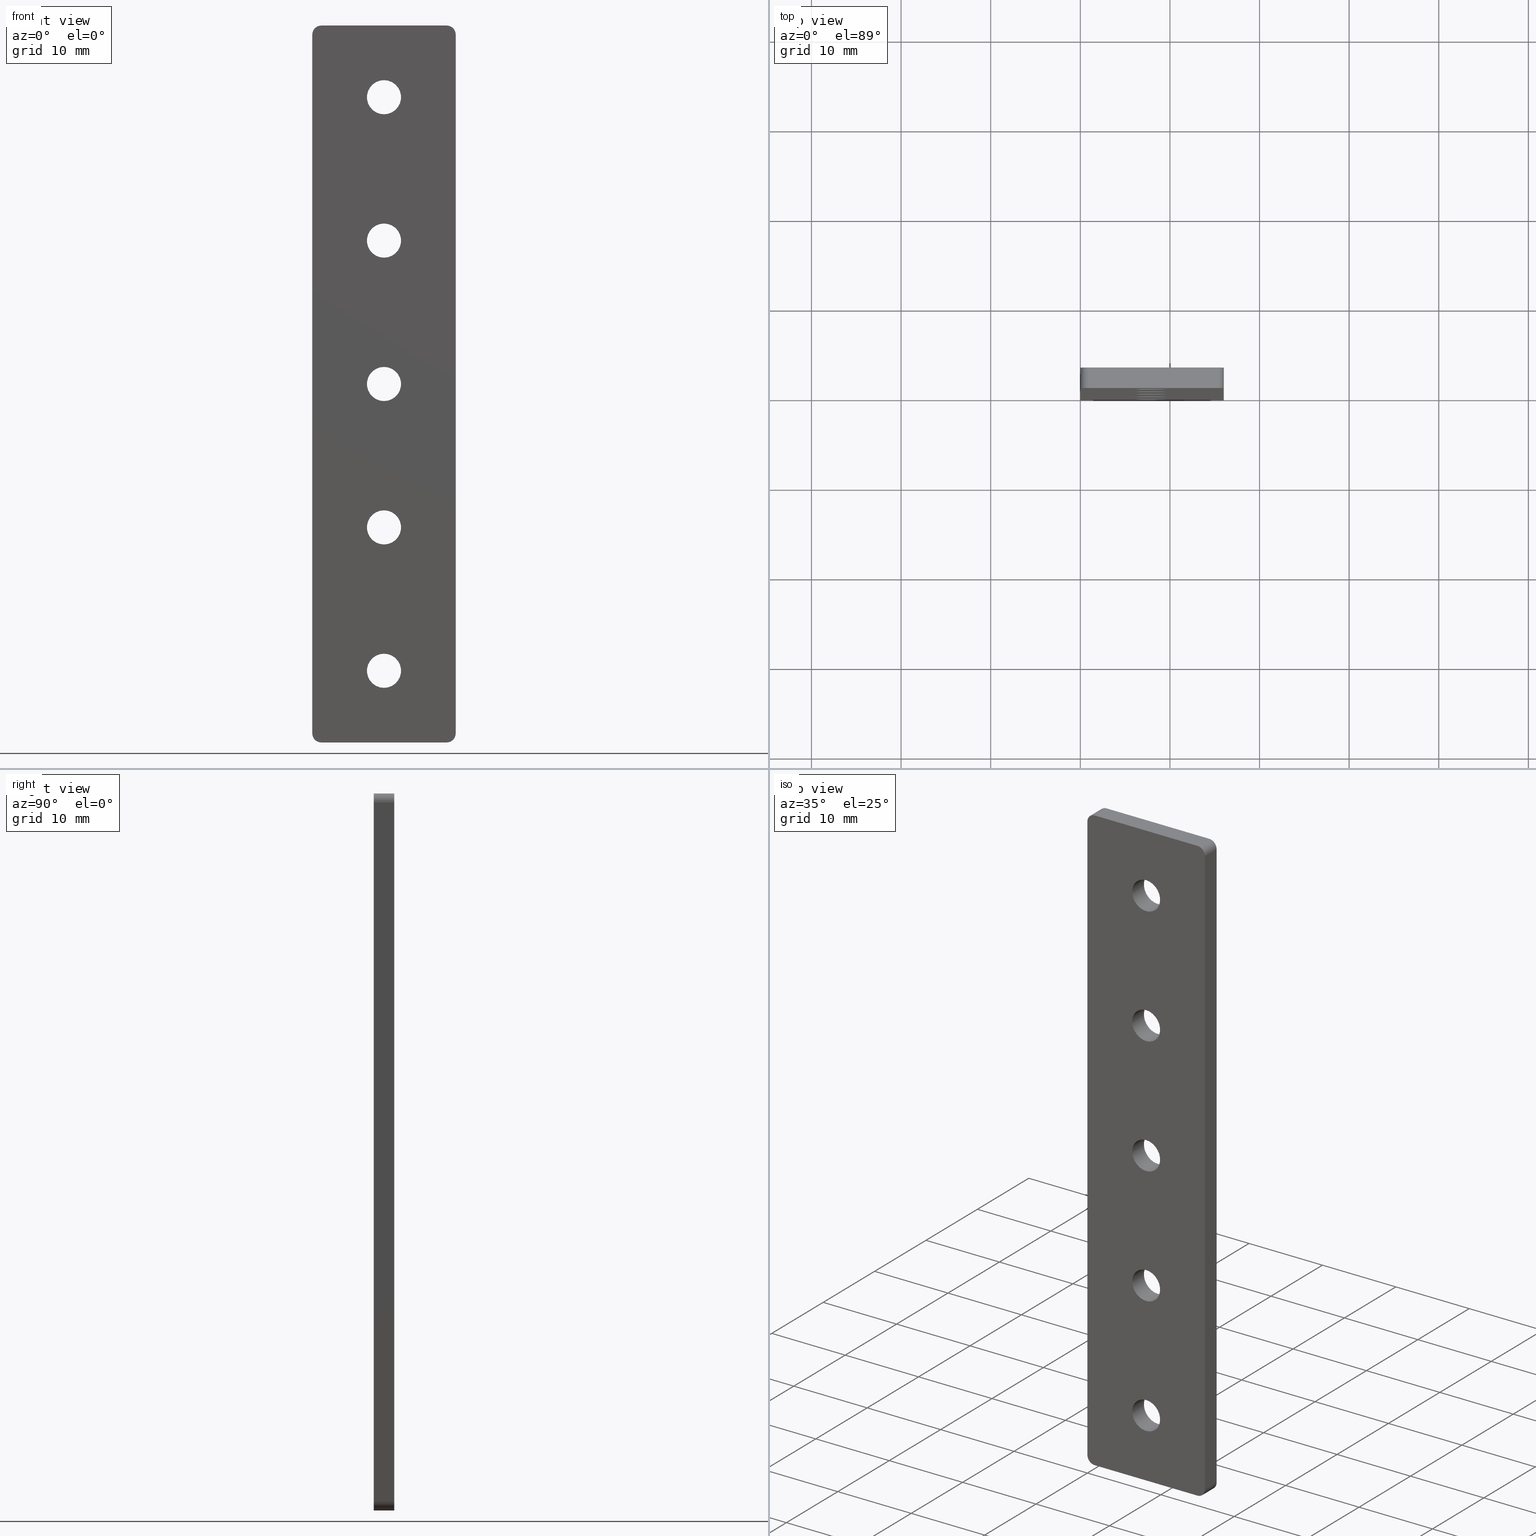
[diagram: canonical four-view strip — front | top / right | iso, engineering-drawing reading convention]
A machine part, canonical four-view strip (front | top / right | iso — engineering-drawing reading convention). The complete STEP part file that produces these views, byte-faithful:
ISO-10303-21;
HEADER;
FILE_DESCRIPTION (( 'STEP AP214' ),
    '1' );
FILE_NAME ('am-3601 Connector (S3 Tube) REV2.STEP',
    '2018-05-15T17:59:19',
    ( '' ),
    ( '' ),
    'SwSTEP 2.0',
    'SolidWorks 2017',
    '' );
FILE_SCHEMA (( 'AUTOMOTIVE_DESIGN' ));
ENDSEC;

DATA;
#1 = EDGE_LOOP ( 'NONE', ( #519, #700 ) ) ;
#2 = DIRECTION ( 'NONE',  ( 0.0000000000000000000, 0.0000000000000000000, 1.000000000000000000 ) ) ;
#3 = CARTESIAN_POINT ( 'NONE',  ( 8.000000000000000000, 2.286000000000000000, -39.99999999999999300 ) ) ;
#4 = ORIENTED_EDGE ( 'NONE', *, *, #575, .T. ) ;
#5 = FACE_OUTER_BOUND ( 'NONE', #383, .T. ) ;
#6 = FACE_OUTER_BOUND ( 'NONE', #328, .T. ) ;
#7 = CARTESIAN_POINT ( 'NONE',  ( 8.000000000000000000, 2.286000000000000000, -57.90499999999999400 ) ) ;
#8 = DIRECTION ( 'NONE',  ( 1.000000000000000000, -0.0000000000000000000, 0.0000000000000000000 ) ) ;
#9 = EDGE_LOOP ( 'NONE', ( #303, #73, #487, #357 ) ) ;
#10 = EDGE_CURVE ( 'NONE', #619, #58, #172, .T. ) ;
#11 = CARTESIAN_POINT ( 'NONE',  ( 0.0000000000000000000, 2.286000000000000000, -79.00000000000000000 ) ) ;
#12 = APPLICATION_PROTOCOL_DEFINITION ( 'draft international standard', 'automotive_design', 1998, #25 ) ;
#13 = ADVANCED_FACE ( 'NONE', ( #353 ), #155, .T. ) ;
#14 = CARTESIAN_POINT ( 'NONE',  ( 8.000000000000000000, 0.0000000000000000000, -55.99999999999999300 ) ) ;
#15 = ORIENTED_EDGE ( 'NONE', *, *, #538, .T. ) ;
#16 = LINE ( 'NONE', #134, #563 ) ;
#17 = DIRECTION ( 'NONE',  ( 0.0000000000000000000, 0.0000000000000000000, 1.000000000000000000 ) ) ;
#18 = ORIENTED_EDGE ( 'NONE', *, *, #430, .T. ) ;
#19 = EDGE_CURVE ( 'NONE', #133, #152, #449, .T. ) ;
#20 = DIRECTION ( 'NONE',  ( 0.0000000000000000000, 0.0000000000000000000, 1.000000000000000000 ) ) ;
#21 = DIRECTION ( 'NONE',  ( 0.0000000000000000000, 0.0000000000000000000, -1.000000000000000000 ) ) ;
#22 = DIRECTION ( 'NONE',  ( 0.0000000000000000000, 0.0000000000000000000, 1.000000000000000000 ) ) ;
#23 = CARTESIAN_POINT ( 'NONE',  ( 8.000000000000001800, 2.286000000000000000, -6.094999999999996200 ) ) ;
#24 = CIRCLE ( 'NONE', #132, 1.000000000000000900 ) ;
#25 = APPLICATION_CONTEXT ( 'automotive_design' ) ;
#26 = VERTEX_POINT ( 'NONE', #606 ) ;
#27 = DIRECTION ( 'NONE',  ( 0.0000000000000000000, 1.000000000000000000, -0.0000000000000000000 ) ) ;
#28 = DIRECTION ( 'NONE',  ( 0.0000000000000000000, -1.000000000000000000, 0.0000000000000000000 ) ) ;
#29 = DIRECTION ( 'NONE',  ( 0.0000000000000000000, 1.000000000000000000, -0.0000000000000000000 ) ) ;
#30 = DIRECTION ( 'NONE',  ( -0.0000000000000000000, -1.000000000000000000, -0.0000000000000000000 ) ) ;
#31 = CARTESIAN_POINT ( 'NONE',  ( 8.000000000000001800, 2.286000000000000000, -7.999999999999996400 ) ) ;
#32 = DIRECTION ( 'NONE',  ( 0.0000000000000000000, 1.000000000000000000, -0.0000000000000000000 ) ) ;
#33 = ORIENTED_EDGE ( 'NONE', *, *, #596, .T. ) ;
#34 = ORIENTED_EDGE ( 'NONE', *, *, #430, .F. ) ;
#35 = COLOUR_RGB ( '',0.8980392156862745400, 0.9176470588235293700, 0.9294117647058823800 ) ;
#36 = ORIENTED_EDGE ( 'NONE', *, *, #196, .F. ) ;
#37 =( NAMED_UNIT ( * ) PLANE_ANGLE_UNIT ( ) SI_UNIT ( $, .RADIAN. ) );
#38 = EDGE_CURVE ( 'NONE', #150, #551, #287, .T. ) ;
#39 = CYLINDRICAL_SURFACE ( 'NONE', #256, 1.000000000000000000 ) ;
#40 = VECTOR ( 'NONE', #696, 1000.000000000000000 ) ;
#41 = VECTOR ( 'NONE', #177, 1000.000000000000000 ) ;
#42 = VERTEX_POINT ( 'NONE', #662 ) ;
#43 = FACE_OUTER_BOUND ( 'NONE', #469, .T. ) ;
#44 = AXIS2_PLACEMENT_3D ( 'NONE', #330, #618, #260 ) ;
#45 = CARTESIAN_POINT ( 'NONE',  ( 8.000000000000000000, 0.0000000000000000000, -72.00000000000001400 ) ) ;
#46 = CARTESIAN_POINT ( 'NONE',  ( 8.000000000000000000, 2.286000000000000000, -54.09499999999999900 ) ) ;
#47 = VECTOR ( 'NONE', #195, 1000.000000000000000 ) ;
#48 = DIRECTION ( 'NONE',  ( -0.0000000000000000000, -1.000000000000000000, -0.0000000000000000000 ) ) ;
#49 = FACE_BOUND ( 'NONE', #249, .T. ) ;
#50 = ORIENTED_EDGE ( 'NONE', *, *, #517, .F. ) ;
#51 = ORIENTED_EDGE ( 'NONE', *, *, #236, .T. ) ;
#52 = FILL_AREA_STYLE_COLOUR ( '', #35 ) ;
#53 = DIRECTION ( 'NONE',  ( -0.0000000000000000000, -1.000000000000000000, 0.0000000000000000000 ) ) ;
#54 = CARTESIAN_POINT ( 'NONE',  ( 8.000000000000001800, 2.286000000000000000, -9.904999999999997600 ) ) ;
#55 = LINE ( 'NONE', #85, #309 ) ;
#56 = VERTEX_POINT ( 'NONE', #586 ) ;
#57 = DIRECTION ( 'NONE',  ( -0.0000000000000000000, -1.000000000000000000, -0.0000000000000000000 ) ) ;
#58 = VERTEX_POINT ( 'NONE', #179 ) ;
#59 = EDGE_CURVE ( 'NONE', #325, #628, #600, .T. ) ;
#60 = CARTESIAN_POINT ( 'NONE',  ( 0.0000000000000000000, 2.286000000000000000, 0.0000000000000000000 ) ) ;
#61 = CARTESIAN_POINT ( 'NONE',  ( 0.0000000000000000000, 0.0000000000000000000, 0.0000000000000000000 ) ) ;
#62 = EDGE_CURVE ( 'NONE', #91, #292, #413, .T. ) ;
#63 = VECTOR ( 'NONE', #8, 1000.000000000000000 ) ;
#64 = DIRECTION ( 'NONE',  ( 0.0000000000000000000, 0.0000000000000000000, 1.000000000000000000 ) ) ;
#65 = ADVANCED_FACE ( 'NONE', ( #331 ), #188, .F. ) ;
#66 = AXIS2_PLACEMENT_3D ( 'NONE', #60, #268, #436 ) ;
#67 = ADVANCED_FACE ( 'NONE', ( #43 ), #573, .F. ) ;
#68 = DIRECTION ( 'NONE',  ( 0.0000000000000000000, 1.000000000000000000, -0.0000000000000000000 ) ) ;
#69 = CARTESIAN_POINT ( 'NONE',  ( 8.000000000000000000, 2.286000000000000000, -72.00000000000001400 ) ) ;
#70 = DIRECTION ( 'NONE',  ( 0.0000000000000000000, 1.000000000000000000, -0.0000000000000000000 ) ) ;
#71 = AXIS2_PLACEMENT_3D ( 'NONE', #206, #609, #320 ) ;
#72 = LINE ( 'NONE', #427, #186 ) ;
#73 = ORIENTED_EDGE ( 'NONE', *, *, #59, .T. ) ;
#74 = DIRECTION ( 'NONE',  ( 0.0000000000000000000, 0.0000000000000000000, -1.000000000000000000 ) ) ;
#75 = CIRCLE ( 'NONE', #169, 1.905000000000000500 ) ;
#76 = ORIENTED_EDGE ( 'NONE', *, *, #575, .F. ) ;
#77 = DIRECTION ( 'NONE',  ( 0.0000000000000000000, 0.0000000000000000000, 1.000000000000000000 ) ) ;
#78 = AXIS2_PLACEMENT_3D ( 'NONE', #363, #710, #306 ) ;
#79 = FACE_OUTER_BOUND ( 'NONE', #416, .T. ) ;
#80 = CIRCLE ( 'NONE', #478, 1.000000000000000000 ) ;
#81 = EDGE_LOOP ( 'NONE', ( #402, #199, #335, #34 ) ) ;
#82 = EDGE_LOOP ( 'NONE', ( #248, #51 ) ) ;
#83 = ORIENTED_EDGE ( 'NONE', *, *, #663, .T. ) ;
#84 = AXIS2_PLACEMENT_3D ( 'NONE', #289, #30, #614 ) ;
#85 = CARTESIAN_POINT ( 'NONE',  ( 15.00000000000000000, 2.286000000000000000, 0.0000000000000000000 ) ) ;
#86 = LINE ( 'NONE', #23, #624 ) ;
#87 = DIRECTION ( 'NONE',  ( 0.0000000000000000000, 1.000000000000000000, -0.0000000000000000000 ) ) ;
#88 = CYLINDRICAL_SURFACE ( 'NONE', #104, 1.905000000000000500 ) ;
#89 = CYLINDRICAL_SURFACE ( 'NONE', #533, 1.904999999999996900 ) ;
#90 = EDGE_LOOP ( 'NONE', ( #366, #472, #252, #433 ) ) ;
#91 = VERTEX_POINT ( 'NONE', #153 ) ;
#92 = DIRECTION ( 'NONE',  ( 0.0000000000000000000, 0.0000000000000000000, 1.000000000000000000 ) ) ;
#93 = CARTESIAN_POINT ( 'NONE',  ( 8.000000000000001800, 0.0000000000000000000, -9.904999999999997600 ) ) ;
#94 = CARTESIAN_POINT ( 'NONE',  ( 8.000000000000000000, 2.286000000000000000, -38.09499999999999900 ) ) ;
#95 = FACE_OUTER_BOUND ( 'NONE', #698, .T. ) ;
#96 = CIRCLE ( 'NONE', #678, 1.905000000000003800 ) ;
#97 = ORIENTED_EDGE ( 'NONE', *, *, #147, .T. ) ;
#98 = EDGE_CURVE ( 'NONE', #255, #688, #75, .T. ) ;
#99 = CARTESIAN_POINT ( 'NONE',  ( 16.00000000000000000, 0.0000000000000000000, -79.00000000000000000 ) ) ;
#100 = AXIS2_PLACEMENT_3D ( 'NONE', #441, #68, #17 ) ;
#101 = CARTESIAN_POINT ( 'NONE',  ( 8.000000000000000000, 0.0000000000000000000, -70.09499999999999900 ) ) ;
#102 = FACE_BOUND ( 'NONE', #583, .T. ) ;
#103 = STYLED_ITEM ( 'NONE', ( #404 ), #621 ) ;
#104 = AXIS2_PLACEMENT_3D ( 'NONE', #31, #114, #689 ) ;
#105 = CARTESIAN_POINT ( 'NONE',  ( 1.000000000000000000, 0.0000000000000000000, -0.0000000000000000000 ) ) ;
#106 = STYLED_ITEM ( 'NONE', ( #154 ), #679 ) ;
#107 = ORIENTED_EDGE ( 'NONE', *, *, #62, .F. ) ;
#108 = DIRECTION ( 'NONE',  ( -0.0000000000000000000, 1.000000000000000000, 0.0000000000000000000 ) ) ;
#109 = CIRCLE ( 'NONE', #311, 1.905000000000000500 ) ;
#110 = PRODUCT_DEFINITION_SHAPE ( 'NONE', 'NONE',  #360 ) ;
#111 = ORIENTED_EDGE ( 'NONE', *, *, #432, .F. ) ;
#112 = ORIENTED_EDGE ( 'NONE', *, *, #231, .T. ) ;
#113 = ADVANCED_FACE ( 'NONE', ( #349 ), #450, .F. ) ;
#114 = DIRECTION ( 'NONE',  ( -0.0000000000000000000, -1.000000000000000000, -0.0000000000000000000 ) ) ;
#115 = DIRECTION ( 'NONE',  ( 0.0000000000000000000, 0.0000000000000000000, 1.000000000000000000 ) ) ;
#116 = ADVANCED_FACE ( 'NONE', ( #211 ), #89, .F. ) ;
#117 = PLANE ( 'NONE',  #66 ) ;
#118 = DIRECTION ( 'NONE',  ( 0.0000000000000000000, 0.0000000000000000000, 1.000000000000000000 ) ) ;
#119 = ORIENTED_EDGE ( 'NONE', *, *, #537, .T. ) ;
#120 = ORIENTED_EDGE ( 'NONE', *, *, #632, .T. ) ;
#121 = DIRECTION ( 'NONE',  ( -0.0000000000000000000, -1.000000000000000000, -0.0000000000000000000 ) ) ;
#122 = VERTEX_POINT ( 'NONE', #101 ) ;
#123 = DIRECTION ( 'NONE',  ( -0.0000000000000000000, -1.000000000000000000, -0.0000000000000000000 ) ) ;
#124 = DIRECTION ( 'NONE',  ( -0.0000000000000000000, -1.000000000000000000, -0.0000000000000000000 ) ) ;
#125 = VECTOR ( 'NONE', #229, 1000.000000000000000 ) ;
#126 = LINE ( 'NONE', #623, #372 ) ;
#127 = LINE ( 'NONE', #392, #578 ) ;
#128 = EDGE_LOOP ( 'NONE', ( #365, #342 ) ) ;
#129 = ORIENTED_EDGE ( 'NONE', *, *, #503, .F. ) ;
#130 = DIRECTION ( 'NONE',  ( 0.0000000000000000000, 1.000000000000000000, -0.0000000000000000000 ) ) ;
#131 = CARTESIAN_POINT ( 'NONE',  ( 8.000000000000000000, 0.0000000000000000000, -55.99999999999999300 ) ) ;
#132 = AXIS2_PLACEMENT_3D ( 'NONE', #567, #87, #92 ) ;
#133 = VERTEX_POINT ( 'NONE', #99 ) ;
#134 = CARTESIAN_POINT ( 'NONE',  ( 1.000000000000000000, 2.286000000000000000, -80.00000000000000000 ) ) ;
#135 = AXIS2_PLACEMENT_3D ( 'NONE', #69, #442, #118 ) ;
#136 = EDGE_LOOP ( 'NONE', ( #36, #426, #327, #463, #111, #15, #159, #527 ) ) ;
#137 = VERTEX_POINT ( 'NONE', #319 ) ;
#138 = AXIS2_PLACEMENT_3D ( 'NONE', #607, #247, #652 ) ;
#139 = DIRECTION ( 'NONE',  ( 0.0000000000000000000, 0.0000000000000000000, 1.000000000000000000 ) ) ;
#140 = CARTESIAN_POINT ( 'NONE',  ( 16.00000000000000000, 2.286000000000000000, -79.00000000000000000 ) ) ;
#141 = LINE ( 'NONE', #682, #278 ) ;
#142 = VECTOR ( 'NONE', #513, 1000.000000000000000 ) ;
#143 = COLOUR_RGB ( '',0.8980392156862745400, 0.9176470588235293700, 0.9294117647058823800 ) ;
#144 = MECHANICAL_DESIGN_GEOMETRIC_PRESENTATION_REPRESENTATION (  '', ( #106 ), #390 ) ;
#145 = CARTESIAN_POINT ( 'NONE',  ( 0.0000000000000000000, 0.0000000000000000000, -1.000000000000000000 ) ) ;
#146 = VERTEX_POINT ( 'NONE', #475 ) ;
#147 = EDGE_CURVE ( 'NONE', #707, #146, #627, .T. ) ;
#148 = CARTESIAN_POINT ( 'NONE',  ( 8.000000000000000000, 2.286000000000000000, -70.09499999999999900 ) ) ;
#149 =( GEOMETRIC_REPRESENTATION_CONTEXT ( 3 ) GLOBAL_UNCERTAINTY_ASSIGNED_CONTEXT ( ( #239 ) ) GLOBAL_UNIT_ASSIGNED_CONTEXT ( ( #345, #37, #403 ) ) REPRESENTATION_CONTEXT ( 'NONE', 'WORKASPACE' ) );
#150 = VERTEX_POINT ( 'NONE', #406 ) ;
#151 = CARTESIAN_POINT ( 'NONE',  ( 8.000000000000001800, 0.0000000000000000000, -7.999999999999996400 ) ) ;
#152 = VERTEX_POINT ( 'NONE', #140 ) ;
#153 = CARTESIAN_POINT ( 'NONE',  ( 8.000000000000000000, 2.286000000000000000, -41.90499999999999400 ) ) ;
#154 = PRESENTATION_STYLE_ASSIGNMENT (( #626 ) ) ;
#155 = CYLINDRICAL_SURFACE ( 'NONE', #464, 1.000000000000000900 ) ;
#156 = LINE ( 'NONE', #11, #544 ) ;
#157 = CARTESIAN_POINT ( 'NONE',  ( 1.000000000000000000, 2.286000000000000000, -1.000000000000000000 ) ) ;
#158 = AXIS2_PLACEMENT_3D ( 'NONE', #3, #572, #598 ) ;
#159 = ORIENTED_EDGE ( 'NONE', *, *, #632, .F. ) ;
#160 = CARTESIAN_POINT ( 'NONE',  ( 8.000000000000000000, 0.0000000000000000000, -39.99999999999999300 ) ) ;
#161 = CYLINDRICAL_SURFACE ( 'NONE', #379, 1.905000000000003800 ) ;
#162 = ADVANCED_FACE ( 'NONE', ( #394 ), #656, .F. ) ;
#163 = ORIENTED_EDGE ( 'NONE', *, *, #473, .T. ) ;
#164 = DIRECTION ( 'NONE',  ( -0.0000000000000000000, -1.000000000000000000, -0.0000000000000000000 ) ) ;
#165 = CARTESIAN_POINT ( 'NONE',  ( 0.0000000000000000000, 0.0000000000000000000, -0.0000000000000000000 ) ) ;
#166 = CARTESIAN_POINT ( 'NONE',  ( 8.000000000000001800, 2.286000000000000000, -7.999999999999996400 ) ) ;
#167 = CARTESIAN_POINT ( 'NONE',  ( 0.0000000000000000000, 0.0000000000000000000, -79.00000000000000000 ) ) ;
#168 = AXIS2_PLACEMENT_3D ( 'NONE', #61, #29, #139 ) ;
#169 = AXIS2_PLACEMENT_3D ( 'NONE', #434, #70, #20 ) ;
#170 = DIRECTION ( 'NONE',  ( 0.0000000000000000000, 1.000000000000000000, -0.0000000000000000000 ) ) ;
#171 = VECTOR ( 'NONE', #579, 1000.000000000000000 ) ;
#172 = LINE ( 'NONE', #484, #40 ) ;
#173 = CARTESIAN_POINT ( 'NONE',  ( 8.000000000000000000, 0.0000000000000000000, -54.09499999999999900 ) ) ;
#174 = FACE_OUTER_BOUND ( 'NONE', #343, .T. ) ;
#175 = DIRECTION ( 'NONE',  ( 0.0000000000000000000, 0.0000000000000000000, 1.000000000000000000 ) ) ;
#176 = AXIS2_PLACEMENT_3D ( 'NONE', #45, #704, #359 ) ;
#177 = DIRECTION ( 'NONE',  ( -1.000000000000000000, 0.0000000000000000000, 0.0000000000000000000 ) ) ;
#178 = CIRCLE ( 'NONE', #685, 1.905000000000000500 ) ;
#179 = CARTESIAN_POINT ( 'NONE',  ( 8.000000000000000000, 0.0000000000000000000, -25.90499999999999800 ) ) ;
#180 = EDGE_LOOP ( 'NONE', ( #453, #665, #97, #243 ) ) ;
#181 = CARTESIAN_POINT ( 'NONE',  ( 16.00000000000000000, 2.286000000000000000, 0.0000000000000000000 ) ) ;
#182 = CARTESIAN_POINT ( 'NONE',  ( 16.00000000000000000, 2.286000000000000000, 0.0000000000000000000 ) ) ;
#183 = VERTEX_POINT ( 'NONE', #173 ) ;
#184 = APPLICATION_CONTEXT ( 'automotive_design' ) ;
#185 = EDGE_CURVE ( 'NONE', #146, #122, #570, .T. ) ;
#186 = VECTOR ( 'NONE', #28, 1000.000000000000000 ) ;
#187 = ORIENTED_EDGE ( 'NONE', *, *, #285, .F. ) ;
#188 = CYLINDRICAL_SURFACE ( 'NONE', #158, 1.904999999999996900 ) ;
#189 = ORIENTED_EDGE ( 'NONE', *, *, #307, .F. ) ;
#190 = EDGE_CURVE ( 'NONE', #137, #58, #494, .T. ) ;
#191 = DIRECTION ( 'NONE',  ( 0.0000000000000000000, 1.000000000000000000, -0.0000000000000000000 ) ) ;
#192 = DIRECTION ( 'NONE',  ( 0.0000000000000000000, 0.0000000000000000000, 1.000000000000000000 ) ) ;
#193 = CIRCLE ( 'NONE', #638, 1.904999999999996900 ) ;
#194 = ORIENTED_EDGE ( 'NONE', *, *, #98, .F. ) ;
#195 = DIRECTION ( 'NONE',  ( -0.0000000000000000000, -1.000000000000000000, -0.0000000000000000000 ) ) ;
#196 = EDGE_CURVE ( 'NONE', #687, #711, #234, .T. ) ;
#197 = CARTESIAN_POINT ( 'NONE',  ( 15.00000000000000000, 2.286000000000000000, -1.000000000000000000 ) ) ;
#198 = VECTOR ( 'NONE', #706, 1000.000000000000000 ) ;
#199 = ORIENTED_EDGE ( 'NONE', *, *, #445, .T. ) ;
#200 = CIRCLE ( 'NONE', #71, 1.904999999999996900 ) ;
#201 = ORIENTED_EDGE ( 'NONE', *, *, #147, .F. ) ;
#202 = DIRECTION ( 'NONE',  ( -0.0000000000000000000, -1.000000000000000000, -0.0000000000000000000 ) ) ;
#203 = CARTESIAN_POINT ( 'NONE',  ( 8.000000000000000000, 0.0000000000000000000, -38.09499999999999900 ) ) ;
#204 = DIRECTION ( 'NONE',  ( 0.0000000000000000000, 1.000000000000000000, -0.0000000000000000000 ) ) ;
#205 = AXIS2_PLACEMENT_3D ( 'NONE', #228, #437, #258 ) ;
#206 = CARTESIAN_POINT ( 'NONE',  ( 8.000000000000000000, 2.286000000000000000, -55.99999999999999300 ) ) ;
#207 = CYLINDRICAL_SURFACE ( 'NONE', #308, 1.000000000000000000 ) ;
#208 = ORIENTED_EDGE ( 'NONE', *, *, #185, .F. ) ;
#209 = DIRECTION ( 'NONE',  ( -0.0000000000000000000, -1.000000000000000000, -0.0000000000000000000 ) ) ;
#210 = CARTESIAN_POINT ( 'NONE',  ( 15.00000000000000000, 0.0000000000000000000, -0.0000000000000000000 ) ) ;
#211 = FACE_OUTER_BOUND ( 'NONE', #81, .T. ) ;
#212 = CARTESIAN_POINT ( 'NONE',  ( 8.000000000000000000, 2.286000000000000000, -25.90499999999999800 ) ) ;
#213 = ADVANCED_FACE ( 'NONE', ( #6 ), #88, .F. ) ;
#214 = MECHANICAL_DESIGN_GEOMETRIC_PRESENTATION_REPRESENTATION (  '', ( #103 ), #149 ) ;
#215 = DIRECTION ( 'NONE',  ( 0.0000000000000000000, 0.0000000000000000000, -1.000000000000000000 ) ) ;
#216 = PRODUCT_RELATED_PRODUCT_CATEGORY ( 'part', '', ( #512 ) ) ;
#217 = DIRECTION ( 'NONE',  ( 0.0000000000000000000, 1.000000000000000000, -0.0000000000000000000 ) ) ;
#218 = CARTESIAN_POINT ( 'NONE',  ( 8.000000000000000000, 2.286000000000000000, -23.99999999999999600 ) ) ;
#219 = VECTOR ( 'NONE', #215, 1000.000000000000000 ) ;
#220 = DIRECTION ( 'NONE',  ( 0.0000000000000000000, 0.0000000000000000000, -1.000000000000000000 ) ) ;
#221 = ORIENTED_EDGE ( 'NONE', *, *, #224, .T. ) ;
#222 = CARTESIAN_POINT ( 'NONE',  ( 8.000000000000000000, 2.286000000000000000, -57.90499999999999400 ) ) ;
#223 = CARTESIAN_POINT ( 'NONE',  ( 8.000000000000000000, 2.286000000000000000, -23.99999999999999600 ) ) ;
#224 = EDGE_CURVE ( 'NONE', #540, #451, #80, .T. ) ;
#225 = CIRCLE ( 'NONE', #352, 1.904999999999996900 ) ;
#226 = ORIENTED_EDGE ( 'NONE', *, *, #38, .F. ) ;
#227 = CARTESIAN_POINT ( 'NONE',  ( 0.0000000000000000000, 2.286000000000000000, 0.0000000000000000000 ) ) ;
#228 = CARTESIAN_POINT ( 'NONE',  ( 0.0000000000000000000, 2.286000000000000000, -80.00000000000000000 ) ) ;
#229 = DIRECTION ( 'NONE',  ( 0.0000000000000000000, -1.000000000000000000, 0.0000000000000000000 ) ) ;
#230 = DIRECTION ( 'NONE',  ( 0.0000000000000000000, 0.0000000000000000000, 1.000000000000000000 ) ) ;
#231 = EDGE_CURVE ( 'NONE', #152, #245, #601, .T. ) ;
#232 =( NAMED_UNIT ( * ) PLANE_ANGLE_UNIT ( ) SI_UNIT ( $, .RADIAN. ) );
#233 = CIRCLE ( 'NONE', #511, 1.000000000000000000 ) ;
#234 = LINE ( 'NONE', #227, #41 ) ;
#235 = CLOSED_SHELL ( 'NONE', ( #259, #65, #67, #321, #113, #547, #439, #377, #213, #262, #610, #116, #162, #550, #488, #617, #329, #374, #666, #13 ) ) ;
#236 = EDGE_CURVE ( 'NONE', #183, #42, #429, .T. ) ;
#237 = CARTESIAN_POINT ( 'NONE',  ( 0.0000000000000000000, 0.0000000000000000000, 0.0000000000000000000 ) ) ;
#238 = SURFACE_SIDE_STYLE ('',( #254 ) ) ;
#239 = UNCERTAINTY_MEASURE_WITH_UNIT (LENGTH_MEASURE( 1.000000000000000100E-005 ), #345, 'distance_accuracy_value', 'NONE');
#240 = DIRECTION ( 'NONE',  ( 0.0000000000000000000, 0.0000000000000000000, -1.000000000000000000 ) ) ;
#241 = VECTOR ( 'NONE', #671, 1000.000000000000000 ) ;
#242 = SHAPE_DEFINITION_REPRESENTATION ( #110, #621 ) ;
#243 = ORIENTED_EDGE ( 'NONE', *, *, #649, .F. ) ;
#244 = EDGE_CURVE ( 'NONE', #56, #707, #279, .T. ) ;
#245 = VERTEX_POINT ( 'NONE', #549 ) ;
#246 = CARTESIAN_POINT ( 'NONE',  ( 1.000000000000000000, 0.0000000000000000000, -1.000000000000000000 ) ) ;
#247 = DIRECTION ( 'NONE',  ( -0.0000000000000000000, -1.000000000000000000, 0.0000000000000000000 ) ) ;
#248 = ORIENTED_EDGE ( 'NONE', *, *, #362, .T. ) ;
#249 = EDGE_LOOP ( 'NONE', ( #625, #655 ) ) ;
#250 = AXIS2_PLACEMENT_3D ( 'NONE', #218, #264, #554 ) ;
#251 = DIRECTION ( 'NONE',  ( 0.0000000000000000000, 1.000000000000000000, -0.0000000000000000000 ) ) ;
#252 = ORIENTED_EDGE ( 'NONE', *, *, #465, .F. ) ;
#253 = LINE ( 'NONE', #165, #241 ) ;
#254 = SURFACE_STYLE_FILL_AREA ( #444 ) ;
#255 = VERTEX_POINT ( 'NONE', #341 ) ;
#256 = AXIS2_PLACEMENT_3D ( 'NONE', #157, #684, #240 ) ;
#257 = DIRECTION ( 'NONE',  ( 0.0000000000000000000, 0.0000000000000000000, 1.000000000000000000 ) ) ;
#258 = DIRECTION ( 'NONE',  ( -1.000000000000000000, 0.0000000000000000000, -0.0000000000000000000 ) ) ;
#259 = ADVANCED_FACE ( 'NONE', ( #5 ), #699, .F. ) ;
#260 = DIRECTION ( 'NONE',  ( 0.0000000000000000000, 0.0000000000000000000, 1.000000000000000000 ) ) ;
#261 = ORIENTED_EDGE ( 'NONE', *, *, #593, .T. ) ;
#262 = ADVANCED_FACE ( 'NONE', ( #411 ), #393, .F. ) ;
#263 = VECTOR ( 'NONE', #209, 1000.000000000000000 ) ;
#264 = DIRECTION ( 'NONE',  ( -0.0000000000000000000, -1.000000000000000000, -0.0000000000000000000 ) ) ;
#265 = CARTESIAN_POINT ( 'NONE',  ( 15.00000000000000000, 0.0000000000000000000, -80.00000000000000000 ) ) ;
#266 = AXIS2_PLACEMENT_3D ( 'NONE', #419, #446, #452 ) ;
#267 = ORIENTED_EDGE ( 'NONE', *, *, #362, .F. ) ;
#268 = DIRECTION ( 'NONE',  ( 0.0000000000000000000, -0.0000000000000000000, 1.000000000000000000 ) ) ;
#269 = AXIS2_PLACEMENT_3D ( 'NONE', #270, #204, #611 ) ;
#270 = CARTESIAN_POINT ( 'NONE',  ( 1.000000000000000000, 2.286000000000000000, -1.000000000000000000 ) ) ;
#271 = CARTESIAN_POINT ( 'NONE',  ( 8.000000000000001800, 2.286000000000000000, -7.999999999999996400 ) ) ;
#272 = VERTEX_POINT ( 'NONE', #382 ) ;
#273 = AXIS2_PLACEMENT_3D ( 'NONE', #536, #251, #425 ) ;
#274 = CARTESIAN_POINT ( 'NONE',  ( 8.000000000000000000, 0.0000000000000000000, -23.99999999999999600 ) ) ;
#275 = EDGE_CURVE ( 'NONE', #333, #540, #253, .T. ) ;
#276 = ORIENTED_EDGE ( 'NONE', *, *, #19, .F. ) ;
#277 = DIRECTION ( 'NONE',  ( 0.0000000000000000000, 0.0000000000000000000, 1.000000000000000000 ) ) ;
#278 = VECTOR ( 'NONE', #202, 1000.000000000000000 ) ;
#279 = CIRCLE ( 'NONE', #135, 1.905000000000003800 ) ;
#280 = VERTEX_POINT ( 'NONE', #167 ) ;
#281 = DIRECTION ( 'NONE',  ( 0.0000000000000000000, 0.0000000000000000000, 1.000000000000000000 ) ) ;
#282 = CARTESIAN_POINT ( 'NONE',  ( 8.000000000000001800, 2.286000000000000000, -7.999999999999996400 ) ) ;
#283 = AXIS2_PLACEMENT_3D ( 'NONE', #509, #130, #230 ) ;
#284 = EDGE_CURVE ( 'NONE', #272, #333, #542, .T. ) ;
#285 = EDGE_CURVE ( 'NONE', #628, #42, #561, .T. ) ;
#286 = SURFACE_STYLE_FILL_AREA ( #507 ) ;
#287 = CIRCLE ( 'NONE', #293, 1.905000000000000500 ) ;
#288 = UNCERTAINTY_MEASURE_WITH_UNIT (LENGTH_MEASURE( 1.000000000000000100E-005 ), #643, 'distance_accuracy_value', 'NONE');
#289 = CARTESIAN_POINT ( 'NONE',  ( 8.000000000000000000, 2.286000000000000000, -55.99999999999999300 ) ) ;
#290 = FACE_BOUND ( 'NONE', #82, .T. ) ;
#291 = ORIENTED_EDGE ( 'NONE', *, *, #538, .F. ) ;
#292 = VERTEX_POINT ( 'NONE', #708 ) ;
#293 = AXIS2_PLACEMENT_3D ( 'NONE', #271, #27, #553 ) ;
#294 = ORIENTED_EDGE ( 'NONE', *, *, #522, .F. ) ;
#295 = ORIENTED_EDGE ( 'NONE', *, *, #505, .F. ) ;
#296 = PRESENTATION_LAYER_ASSIGNMENT (  '', '', ( #106 ) ) ;
#297 = VECTOR ( 'NONE', #455, 1000.000000000000000 ) ;
#298 = VERTEX_POINT ( 'NONE', #203 ) ;
#299 = ORIENTED_EDGE ( 'NONE', *, *, #543, .T. ) ;
#300 = EDGE_LOOP ( 'NONE', ( #440, #399, #709, #534 ) ) ;
#301 = CARTESIAN_POINT ( 'NONE',  ( 15.00000000000000000, 2.286000000000000000, -80.00000000000000000 ) ) ;
#302 = LINE ( 'NONE', #54, #263 ) ;
#303 = ORIENTED_EDGE ( 'NONE', *, *, #615, .F. ) ;
#304 = AXIS2_PLACEMENT_3D ( 'NONE', #274, #568, #585 ) ;
#305 = ORIENTED_EDGE ( 'NONE', *, *, #599, .F. ) ;
#306 = DIRECTION ( 'NONE',  ( 0.0000000000000000000, 0.0000000000000000000, 1.000000000000000000 ) ) ;
#307 = EDGE_CURVE ( 'NONE', #245, #272, #126, .T. ) ;
#308 = AXIS2_PLACEMENT_3D ( 'NONE', #197, #584, #562 ) ;
#309 = VECTOR ( 'NONE', #108, 1000.000000000000000 ) ;
#310 = VECTOR ( 'NONE', #690, 1000.000000000000000 ) ;
#311 = AXIS2_PLACEMENT_3D ( 'NONE', #318, #468, #2 ) ;
#312 = EDGE_LOOP ( 'NONE', ( #369, #694 ) ) ;
#313 = DIRECTION ( 'NONE',  ( 0.0000000000000000000, -1.000000000000000000, 0.0000000000000000000 ) ) ;
#314 = ORIENTED_EDGE ( 'NONE', *, *, #661, .F. ) ;
#315 = EDGE_LOOP ( 'NONE', ( #588, #423, #639, #459 ) ) ;
#316 = AXIS2_PLACEMENT_3D ( 'NONE', #530, #53, #192 ) ;
#317 = EDGE_CURVE ( 'NONE', #26, #619, #109, .T. ) ;
#318 = CARTESIAN_POINT ( 'NONE',  ( 8.000000000000000000, 2.286000000000000000, -23.99999999999999600 ) ) ;
#319 = CARTESIAN_POINT ( 'NONE',  ( 8.000000000000000000, 0.0000000000000000000, -22.09499999999999500 ) ) ;
#320 = DIRECTION ( 'NONE',  ( 0.0000000000000000000, 0.0000000000000000000, 1.000000000000000000 ) ) ;
#321 = ADVANCED_FACE ( 'NONE', ( #524 ), #506, .F. ) ;
#322 = LINE ( 'NONE', #418, #47 ) ;
#323 = DIRECTION ( 'NONE',  ( 0.0000000000000000000, 0.0000000000000000000, 1.000000000000000000 ) ) ;
#324 = FACE_BOUND ( 'NONE', #510, .T. ) ;
#325 = VERTEX_POINT ( 'NONE', #46 ) ;
#326 = ORIENTED_EDGE ( 'NONE', *, *, #661, .T. ) ;
#327 = ORIENTED_EDGE ( 'NONE', *, *, #231, .F. ) ;
#328 = EDGE_LOOP ( 'NONE', ( #50, #4, #644, #194 ) ) ;
#329 = ADVANCED_FACE ( 'NONE', ( #664 ), #207, .T. ) ;
#330 = CARTESIAN_POINT ( 'NONE',  ( 0.0000000000000000000, 2.286000000000000000, 0.0000000000000000000 ) ) ;
#331 = FACE_OUTER_BOUND ( 'NONE', #592, .T. ) ;
#332 = EDGE_CURVE ( 'NONE', #280, #576, #354, .T. ) ;
#333 = VERTEX_POINT ( 'NONE', #210 ) ;
#334 = ORIENTED_EDGE ( 'NONE', *, *, #224, .F. ) ;
#335 = ORIENTED_EDGE ( 'NONE', *, *, #62, .T. ) ;
#336 = DIRECTION ( 'NONE',  ( 0.0000000000000000000, 1.000000000000000000, -0.0000000000000000000 ) ) ;
#337 = AXIS2_PLACEMENT_3D ( 'NONE', #223, #681, #635 ) ;
#338 = CARTESIAN_POINT ( 'NONE',  ( 8.000000000000000000, 0.0000000000000000000, -39.99999999999999300 ) ) ;
#339 = CYLINDRICAL_SURFACE ( 'NONE', #266, 1.000000000000000900 ) ;
#340 = VERTEX_POINT ( 'NONE', #546 ) ;
#341 = CARTESIAN_POINT ( 'NONE',  ( 8.000000000000001800, 0.0000000000000000000, -6.094999999999996200 ) ) ;
#342 = ORIENTED_EDGE ( 'NONE', *, *, #244, .F. ) ;
#343 = EDGE_LOOP ( 'NONE', ( #657, #498, #577, #326 ) ) ;
#344 = ORIENTED_EDGE ( 'NONE', *, *, #465, .T. ) ;
#345 =( LENGTH_UNIT ( ) NAMED_UNIT ( * ) SI_UNIT ( .MILLI., .METRE. ) );
#346 = DIRECTION ( 'NONE',  ( -0.0000000000000000000, 1.000000000000000000, -0.0000000000000000000 ) ) ;
#347 = CIRCLE ( 'NONE', #594, 1.904999999999996900 ) ;
#348 = ORIENTED_EDGE ( 'NONE', *, *, #596, .F. ) ;
#349 = FACE_OUTER_BOUND ( 'NONE', #90, .T. ) ;
#350 = ORIENTED_EDGE ( 'NONE', *, *, #615, .T. ) ;
#351 = PRODUCT_DEFINITION_FORMATION_WITH_SPECIFIED_SOURCE ( 'ANY', '', #512, .NOT_KNOWN. ) ;
#352 = AXIS2_PLACEMENT_3D ( 'NONE', #131, #32, #691 ) ;
#353 = FACE_OUTER_BOUND ( 'NONE', #560, .T. ) ;
#354 = CIRCLE ( 'NONE', #388, 1.000000000000000900 ) ;
#355 = ORIENTED_EDGE ( 'NONE', *, *, #489, .F. ) ;
#356 = CARTESIAN_POINT ( 'NONE',  ( 8.000000000000000000, 0.0000000000000000000, -23.99999999999999600 ) ) ;
#357 = ORIENTED_EDGE ( 'NONE', *, *, #236, .F. ) ;
#358 = AXIS2_PLACEMENT_3D ( 'NONE', #160, #466, #376 ) ;
#359 = DIRECTION ( 'NONE',  ( 0.0000000000000000000, 0.0000000000000000000, 1.000000000000000000 ) ) ;
#360 = PRODUCT_DEFINITION ( 'UNKNOWN', '', #351, #415 ) ;
#361 = DIRECTION ( 'NONE',  ( 0.0000000000000000000, 1.000000000000000000, -0.0000000000000000000 ) ) ;
#362 = EDGE_CURVE ( 'NONE', #42, #183, #225, .T. ) ;
#363 = CARTESIAN_POINT ( 'NONE',  ( 8.000000000000000000, 2.286000000000000000, -23.99999999999999600 ) ) ;
#364 = LINE ( 'NONE', #703, #198 ) ;
#365 = ORIENTED_EDGE ( 'NONE', *, *, #673, .F. ) ;
#366 = ORIENTED_EDGE ( 'NONE', *, *, #38, .T. ) ;
#367 = FACE_OUTER_BOUND ( 'NONE', #693, .T. ) ;
#368 = UNCERTAINTY_MEASURE_WITH_UNIT (LENGTH_MEASURE( 1.000000000000000100E-005 ), #401, 'distance_accuracy_value', 'NONE');
#369 = ORIENTED_EDGE ( 'NONE', *, *, #185, .T. ) ;
#370 = CARTESIAN_POINT ( 'NONE',  ( 8.000000000000001800, 2.286000000000000000, -6.094999999999996200 ) ) ;
#371 = DIRECTION ( 'NONE',  ( 0.0000000000000000000, 0.0000000000000000000, -1.000000000000000000 ) ) ;
#372 = VECTOR ( 'NONE', #660, 1000.000000000000000 ) ;
#373 =( NAMED_UNIT ( * ) SI_UNIT ( $, .STERADIAN. ) SOLID_ANGLE_UNIT ( ) );
#374 = ADVANCED_FACE ( 'NONE', ( #79 ), #339, .T. ) ;
#375 =( GEOMETRIC_REPRESENTATION_CONTEXT ( 3 ) GLOBAL_UNCERTAINTY_ASSIGNED_CONTEXT ( ( #368 ) ) GLOBAL_UNIT_ASSIGNED_CONTEXT ( ( #401, #605, #539 ) ) REPRESENTATION_CONTEXT ( 'NONE', 'WORKASPACE' ) );
#376 = DIRECTION ( 'NONE',  ( 0.0000000000000000000, 0.0000000000000000000, 1.000000000000000000 ) ) ;
#377 = ADVANCED_FACE ( 'NONE', ( #95 ), #630, .T. ) ;
#378 = PLANE ( 'NONE',  #44 ) ;
#379 = AXIS2_PLACEMENT_3D ( 'NONE', #389, #124, #482 ) ;
#380 = CIRCLE ( 'NONE', #316, 1.000000000000000900 ) ;
#381 = ORIENTED_EDGE ( 'NONE', *, *, #555, .T. ) ;
#382 = CARTESIAN_POINT ( 'NONE',  ( 16.00000000000000000, 0.0000000000000000000, -1.000000000000000000 ) ) ;
#383 = EDGE_LOOP ( 'NONE', ( #386, #350, #267, #187 ) ) ;
#384 = LINE ( 'NONE', #397, #125 ) ;
#385 = ORIENTED_EDGE ( 'NONE', *, *, #537, .F. ) ;
#386 = ORIENTED_EDGE ( 'NONE', *, *, #629, .T. ) ;
#387 = DIRECTION ( 'NONE',  ( -0.0000000000000000000, -1.000000000000000000, -0.0000000000000000000 ) ) ;
#388 = AXIS2_PLACEMENT_3D ( 'NONE', #695, #515, #175 ) ;
#389 = CARTESIAN_POINT ( 'NONE',  ( 8.000000000000000000, 2.286000000000000000, -72.00000000000001400 ) ) ;
#390 =( GEOMETRIC_REPRESENTATION_CONTEXT ( 3 ) GLOBAL_UNCERTAINTY_ASSIGNED_CONTEXT ( ( #288 ) ) GLOBAL_UNIT_ASSIGNED_CONTEXT ( ( #643, #232, #373 ) ) REPRESENTATION_CONTEXT ( 'NONE', 'WORKASPACE' ) );
#391 = DIRECTION ( 'NONE',  ( 0.0000000000000000000, 1.000000000000000000, -0.0000000000000000000 ) ) ;
#392 = CARTESIAN_POINT ( 'NONE',  ( 0.0000000000000000000, 0.0000000000000000000, -80.00000000000000000 ) ) ;
#393 = CYLINDRICAL_SURFACE ( 'NONE', #250, 1.905000000000000500 ) ;
#394 = FACE_OUTER_BOUND ( 'NONE', #9, .T. ) ;
#395 = FACE_OUTER_BOUND ( 'NONE', #398, .T. ) ;
#396 = VERTEX_POINT ( 'NONE', #590 ) ;
#397 = CARTESIAN_POINT ( 'NONE',  ( 1.000000000000000000, 2.286000000000000000, 0.0000000000000000000 ) ) ;
#398 = EDGE_LOOP ( 'NONE', ( #410, #129, #334, #314 ) ) ;
#399 = ORIENTED_EDGE ( 'NONE', *, *, #317, .T. ) ;
#400 = AXIS2_PLACEMENT_3D ( 'NONE', #14, #612, #22 ) ;
#401 =( LENGTH_UNIT ( ) NAMED_UNIT ( * ) SI_UNIT ( .MILLI., .METRE. ) );
#402 = ORIENTED_EDGE ( 'NONE', *, *, #543, .F. ) ;
#403 =( NAMED_UNIT ( * ) SI_UNIT ( $, .STERADIAN. ) SOLID_ANGLE_UNIT ( ) );
#404 = PRESENTATION_STYLE_ASSIGNMENT (( #645 ) ) ;
#405 = PRESENTATION_LAYER_ASSIGNMENT (  '', '', ( #103 ) ) ;
#406 = CARTESIAN_POINT ( 'NONE',  ( 8.000000000000001800, 2.286000000000000000, -9.904999999999997600 ) ) ;
#407 = CIRCLE ( 'NONE', #176, 1.905000000000003800 ) ;
#408 = ORIENTED_EDGE ( 'NONE', *, *, #332, .T. ) ;
#409 = ORIENTED_EDGE ( 'NONE', *, *, #629, .F. ) ;
#410 = ORIENTED_EDGE ( 'NONE', *, *, #668, .F. ) ;
#411 = FACE_OUTER_BOUND ( 'NONE', #300, .T. ) ;
#412 = VECTOR ( 'NONE', #64, 1000.000000000000000 ) ;
#413 = LINE ( 'NONE', #504, #520 ) ;
#414 = ORIENTED_EDGE ( 'NONE', *, *, #473, .F. ) ;
#415 = PRODUCT_DEFINITION_CONTEXT ( 'detailed design', #184, 'design' ) ;
#416 = EDGE_LOOP ( 'NONE', ( #637, #276, #414, #294 ) ) ;
#417 = ORIENTED_EDGE ( 'NONE', *, *, #98, .T. ) ;
#418 = CARTESIAN_POINT ( 'NONE',  ( 8.000000000000000000, 2.286000000000000000, -22.09499999999999500 ) ) ;
#419 = CARTESIAN_POINT ( 'NONE',  ( 15.00000000000000000, 2.286000000000000000, -79.00000000000000000 ) ) ;
#420 = DIRECTION ( 'NONE',  ( -0.0000000000000000000, -1.000000000000000000, -0.0000000000000000000 ) ) ;
#421 = VERTEX_POINT ( 'NONE', #481 ) ;
#422 = LINE ( 'NONE', #94, #497 ) ;
#423 = ORIENTED_EDGE ( 'NONE', *, *, #448, .T. ) ;
#424 = ORIENTED_EDGE ( 'NONE', *, *, #531, .F. ) ;
#425 = DIRECTION ( 'NONE',  ( 0.0000000000000000000, 0.0000000000000000000, 1.000000000000000000 ) ) ;
#426 = ORIENTED_EDGE ( 'NONE', *, *, #505, .T. ) ;
#427 = CARTESIAN_POINT ( 'NONE',  ( 15.00000000000000000, 2.286000000000000000, -80.00000000000000000 ) ) ;
#428 = FACE_OUTER_BOUND ( 'NONE', #180, .T. ) ;
#429 = CIRCLE ( 'NONE', #400, 1.904999999999996900 ) ;
#430 = EDGE_CURVE ( 'NONE', #298, #292, #485, .T. ) ;
#431 = EDGE_LOOP ( 'NONE', ( #261, #647, #545, #221, #521, #408, #565, #163 ) ) ;
#432 = EDGE_CURVE ( 'NONE', #470, #471, #646, .T. ) ;
#433 = ORIENTED_EDGE ( 'NONE', *, *, #651, .F. ) ;
#434 = CARTESIAN_POINT ( 'NONE',  ( 8.000000000000001800, 0.0000000000000000000, -7.999999999999996400 ) ) ;
#435 = DIRECTION ( 'NONE',  ( 1.000000000000000000, -0.0000000000000000000, 0.0000000000000000000 ) ) ;
#436 = DIRECTION ( 'NONE',  ( 1.000000000000000000, 0.0000000000000000000, -0.0000000000000000000 ) ) ;
#437 = DIRECTION ( 'NONE',  ( 0.0000000000000000000, 0.0000000000000000000, -1.000000000000000000 ) ) ;
#438 = DIRECTION ( 'NONE',  ( 0.0000000000000000000, 1.000000000000000000, -0.0000000000000000000 ) ) ;
#439 = ADVANCED_FACE ( 'NONE', ( #367 ), #525, .T. ) ;
#440 = ORIENTED_EDGE ( 'NONE', *, *, #448, .F. ) ;
#441 = CARTESIAN_POINT ( 'NONE',  ( 1.000000000000000000, 2.286000000000000000, -79.00000000000000000 ) ) ;
#442 = DIRECTION ( 'NONE',  ( 0.0000000000000000000, 1.000000000000000000, -0.0000000000000000000 ) ) ;
#443 = ORIENTED_EDGE ( 'NONE', *, *, #673, .T. ) ;
#444 = FILL_AREA_STYLE ('',( #558 ) ) ;
#445 = EDGE_CURVE ( 'NONE', #396, #91, #193, .T. ) ;
#446 = DIRECTION ( 'NONE',  ( 0.0000000000000000000, -1.000000000000000000, 0.0000000000000000000 ) ) ;
#447 = EDGE_CURVE ( 'NONE', #619, #26, #467, .T. ) ;
#448 = EDGE_CURVE ( 'NONE', #26, #137, #322, .T. ) ;
#449 = LINE ( 'NONE', #676, #310 ) ;
#450 = CYLINDRICAL_SURFACE ( 'NONE', #480, 1.905000000000000500 ) ;
#451 = VERTEX_POINT ( 'NONE', #145 ) ;
#452 = DIRECTION ( 'NONE',  ( 0.0000000000000000000, 0.0000000000000000000, -1.000000000000000000 ) ) ;
#453 = ORIENTED_EDGE ( 'NONE', *, *, #555, .F. ) ;
#454 = PLANE ( 'NONE',  #168 ) ;
#455 = DIRECTION ( 'NONE',  ( -0.0000000000000000000, -1.000000000000000000, -0.0000000000000000000 ) ) ;
#456 = FACE_BOUND ( 'NONE', #1, .T. ) ;
#457 = DIRECTION ( 'NONE',  ( 0.0000000000000000000, 0.0000000000000000000, 1.000000000000000000 ) ) ;
#458 = FACE_BOUND ( 'NONE', #312, .T. ) ;
#459 = ORIENTED_EDGE ( 'NONE', *, *, #10, .F. ) ;
#460 = ORIENTED_EDGE ( 'NONE', *, *, #503, .T. ) ;
#461 = AXIS2_PLACEMENT_3D ( 'NONE', #338, #217, #490 ) ;
#462 = CIRCLE ( 'NONE', #100, 1.000000000000000900 ) ;
#463 = ORIENTED_EDGE ( 'NONE', *, *, #701, .T. ) ;
#464 = AXIS2_PLACEMENT_3D ( 'NONE', #557, #559, #220 ) ;
#465 = EDGE_CURVE ( 'NONE', #688, #255, #178, .T. ) ;
#466 = DIRECTION ( 'NONE',  ( 0.0000000000000000000, 1.000000000000000000, -0.0000000000000000000 ) ) ;
#467 = CIRCLE ( 'NONE', #78, 1.905000000000000500 ) ;
#468 = DIRECTION ( 'NONE',  ( 0.0000000000000000000, 1.000000000000000000, -0.0000000000000000000 ) ) ;
#469 = EDGE_LOOP ( 'NONE', ( #443, #381, #208, #201 ) ) ;
#470 = VERTEX_POINT ( 'NONE', #548 ) ;
#471 = VERTEX_POINT ( 'NONE', #301 ) ;
#472 = ORIENTED_EDGE ( 'NONE', *, *, #517, .T. ) ;
#473 = EDGE_CURVE ( 'NONE', #574, #133, #380, .T. ) ;
#474 = DIRECTION ( 'NONE',  ( 0.0000000000000000000, 0.0000000000000000000, 1.000000000000000000 ) ) ;
#475 = CARTESIAN_POINT ( 'NONE',  ( 8.000000000000000000, 0.0000000000000000000, -73.90500000000001500 ) ) ;
#476 = LINE ( 'NONE', #659, #412 ) ;
#477 = ORIENTED_EDGE ( 'NONE', *, *, #59, .F. ) ;
#478 = AXIS2_PLACEMENT_3D ( 'NONE', #246, #569, #277 ) ;
#479 = LINE ( 'NONE', #148, #686 ) ;
#480 = AXIS2_PLACEMENT_3D ( 'NONE', #282, #587, #371 ) ;
#481 = CARTESIAN_POINT ( 'NONE',  ( 0.0000000000000000000, 2.286000000000000000, -1.000000000000000000 ) ) ;
#482 = DIRECTION ( 'NONE',  ( 0.0000000000000000000, 0.0000000000000000000, -1.000000000000000000 ) ) ;
#483 = AXIS2_PLACEMENT_3D ( 'NONE', #491, #123, #74 ) ;
#484 = CARTESIAN_POINT ( 'NONE',  ( 8.000000000000000000, 2.286000000000000000, -25.90499999999999800 ) ) ;
#485 = CIRCLE ( 'NONE', #358, 1.904999999999996900 ) ;
#486 = ORIENTED_EDGE ( 'NONE', *, *, #19, .T. ) ;
#487 = ORIENTED_EDGE ( 'NONE', *, *, #285, .T. ) ;
#488 = ADVANCED_FACE ( 'NONE', ( #613, #456, #633, #102, #672, #518 ), #500, .T. ) ;
#489 = EDGE_CURVE ( 'NONE', #451, #280, #654, .T. ) ;
#490 = DIRECTION ( 'NONE',  ( 0.0000000000000000000, 0.0000000000000000000, 1.000000000000000000 ) ) ;
#491 = CARTESIAN_POINT ( 'NONE',  ( 8.000000000000000000, 2.286000000000000000, -55.99999999999999300 ) ) ;
#492 = CARTESIAN_POINT ( 'NONE',  ( 8.000000000000000000, 2.286000000000000000, -72.00000000000001400 ) ) ;
#493 = CARTESIAN_POINT ( 'NONE',  ( 8.000000000000000000, 2.286000000000000000, -39.99999999999999300 ) ) ;
#494 = CIRCLE ( 'NONE', #304, 1.905000000000000500 ) ;
#495 = ORIENTED_EDGE ( 'NONE', *, *, #284, .F. ) ;
#496 = DIRECTION ( 'NONE',  ( 0.0000000000000000000, 1.000000000000000000, -0.0000000000000000000 ) ) ;
#497 = VECTOR ( 'NONE', #669, 1000.000000000000000 ) ;
#498 = ORIENTED_EDGE ( 'NONE', *, *, #531, .T. ) ;
#499 = AXIS2_PLACEMENT_3D ( 'NONE', #166, #391, #502 ) ;
#500 = PLANE ( 'NONE',  #653 ) ;
#501 = CARTESIAN_POINT ( 'NONE',  ( 8.000000000000000000, 2.286000000000000000, -73.90500000000001500 ) ) ;
#502 = DIRECTION ( 'NONE',  ( 0.0000000000000000000, 0.0000000000000000000, 1.000000000000000000 ) ) ;
#503 = EDGE_CURVE ( 'NONE', #451, #421, #364, .T. ) ;
#504 = CARTESIAN_POINT ( 'NONE',  ( 8.000000000000000000, 2.286000000000000000, -41.90499999999999400 ) ) ;
#505 = EDGE_CURVE ( 'NONE', #687, #245, #233, .T. ) ;
#506 = CYLINDRICAL_SURFACE ( 'NONE', #337, 1.905000000000000500 ) ;
#507 = FILL_AREA_STYLE ('',( #52 ) ) ;
#508 = CIRCLE ( 'NONE', #529, 1.905000000000000500 ) ;
#509 = CARTESIAN_POINT ( 'NONE',  ( 8.000000000000000000, 0.0000000000000000000, -72.00000000000001400 ) ) ;
#510 = EDGE_LOOP ( 'NONE', ( #344, #417 ) ) ;
#511 = AXIS2_PLACEMENT_3D ( 'NONE', #667, #170, #323 ) ;
#512 = PRODUCT ( 'am-3601 Connector (S3 Tube) REV2', 'am-3601 Connector (S3 Tube) REV2', '', ( #516 ) ) ;
#513 = DIRECTION ( 'NONE',  ( 0.0000000000000000000, 0.0000000000000000000, 1.000000000000000000 ) ) ;
#514 = AXIS2_PLACEMENT_3D ( 'NONE', #566, #420, #595 ) ;
#515 = DIRECTION ( 'NONE',  ( -0.0000000000000000000, -1.000000000000000000, 0.0000000000000000000 ) ) ;
#516 = PRODUCT_CONTEXT ( 'NONE', #25, 'mechanical' ) ;
#517 = EDGE_CURVE ( 'NONE', #551, #255, #86, .T. ) ;
#518 = FACE_OUTER_BOUND ( 'NONE', #136, .T. ) ;
#519 = ORIENTED_EDGE ( 'NONE', *, *, #663, .F. ) ;
#520 = VECTOR ( 'NONE', #164, 1000.000000000000000 ) ;
#521 = ORIENTED_EDGE ( 'NONE', *, *, #489, .T. ) ;
#522 = EDGE_CURVE ( 'NONE', #471, #574, #72, .T. ) ;
#523 = DIRECTION ( 'NONE',  ( 0.0000000000000000000, 0.0000000000000000000, 1.000000000000000000 ) ) ;
#524 = FACE_OUTER_BOUND ( 'NONE', #315, .T. ) ;
#525 = PLANE ( 'NONE',  #705 ) ;
#526 = CARTESIAN_POINT ( 'NONE',  ( 0.0000000000000000000, 0.0000000000000000000, 0.0000000000000000000 ) ) ;
#527 = ORIENTED_EDGE ( 'NONE', *, *, #668, .T. ) ;
#528 = CARTESIAN_POINT ( 'NONE',  ( 0.0000000000000000000, 2.286000000000000000, 0.0000000000000000000 ) ) ;
#529 = AXIS2_PLACEMENT_3D ( 'NONE', #356, #336, #257 ) ;
#530 = CARTESIAN_POINT ( 'NONE',  ( 15.00000000000000000, 0.0000000000000000000, -79.00000000000000000 ) ) ;
#531 = EDGE_CURVE ( 'NONE', #333, #687, #55, .T. ) ;
#532 = DIRECTION ( 'NONE',  ( 1.000000000000000000, 0.0000000000000000000, 0.0000000000000000000 ) ) ;
#533 = AXIS2_PLACEMENT_3D ( 'NONE', #493, #387, #541 ) ;
#534 = ORIENTED_EDGE ( 'NONE', *, *, #190, .F. ) ;
#535 = ORIENTED_EDGE ( 'NONE', *, *, #593, .F. ) ;
#536 = CARTESIAN_POINT ( 'NONE',  ( 8.000000000000000000, 2.286000000000000000, -55.99999999999999300 ) ) ;
#537 = EDGE_CURVE ( 'NONE', #292, #298, #640, .T. ) ;
#538 = EDGE_CURVE ( 'NONE', #470, #340, #462, .T. ) ;
#539 =( NAMED_UNIT ( * ) SI_UNIT ( $, .STERADIAN. ) SOLID_ANGLE_UNIT ( ) );
#540 = VERTEX_POINT ( 'NONE', #105 ) ;
#541 = DIRECTION ( 'NONE',  ( 0.0000000000000000000, 0.0000000000000000000, -1.000000000000000000 ) ) ;
#542 = CIRCLE ( 'NONE', #138, 1.000000000000000000 ) ;
#543 = EDGE_CURVE ( 'NONE', #396, #298, #422, .T. ) ;
#544 = VECTOR ( 'NONE', #313, 1000.000000000000000 ) ;
#545 = ORIENTED_EDGE ( 'NONE', *, *, #275, .T. ) ;
#546 = CARTESIAN_POINT ( 'NONE',  ( 0.0000000000000000000, 2.286000000000000000, -79.00000000000000000 ) ) ;
#547 = ADVANCED_FACE ( 'NONE', ( #174 ), #117, .T. ) ;
#548 = CARTESIAN_POINT ( 'NONE',  ( 1.000000000000000000, 2.286000000000000000, -80.00000000000000000 ) ) ;
#549 = CARTESIAN_POINT ( 'NONE',  ( 16.00000000000000000, 2.286000000000000000, -1.000000000000000000 ) ) ;
#550 = ADVANCED_FACE ( 'NONE', ( #580 ), #378, .T. ) ;
#551 = VERTEX_POINT ( 'NONE', #370 ) ;
#552 = EDGE_LOOP ( 'NONE', ( #355, #460, #120, #33 ) ) ;
#553 = DIRECTION ( 'NONE',  ( 0.0000000000000000000, 0.0000000000000000000, 1.000000000000000000 ) ) ;
#554 = DIRECTION ( 'NONE',  ( 0.0000000000000000000, 0.0000000000000000000, -1.000000000000000000 ) ) ;
#555 = EDGE_CURVE ( 'NONE', #56, #122, #479, .T. ) ;
#556 = ORIENTED_EDGE ( 'NONE', *, *, #712, .F. ) ;
#557 = CARTESIAN_POINT ( 'NONE',  ( 1.000000000000000000, 2.286000000000000000, -79.00000000000000000 ) ) ;
#558 = FILL_AREA_STYLE_COLOUR ( '', #143 ) ;
#559 = DIRECTION ( 'NONE',  ( 0.0000000000000000000, -1.000000000000000000, 0.0000000000000000000 ) ) ;
#560 = EDGE_LOOP ( 'NONE', ( #291, #556, #648, #348 ) ) ;
#561 = LINE ( 'NONE', #222, #683 ) ;
#562 = DIRECTION ( 'NONE',  ( 0.0000000000000000000, 0.0000000000000000000, -1.000000000000000000 ) ) ;
#563 = VECTOR ( 'NONE', #346, 1000.000000000000000 ) ;
#564 = CARTESIAN_POINT ( 'NONE',  ( 0.0000000000000000000, 2.286000000000000000, 0.0000000000000000000 ) ) ;
#565 = ORIENTED_EDGE ( 'NONE', *, *, #599, .T. ) ;
#566 = CARTESIAN_POINT ( 'NONE',  ( 8.000000000000000000, 2.286000000000000000, -72.00000000000001400 ) ) ;
#567 = CARTESIAN_POINT ( 'NONE',  ( 15.00000000000000000, 2.286000000000000000, -79.00000000000000000 ) ) ;
#568 = DIRECTION ( 'NONE',  ( 0.0000000000000000000, 1.000000000000000000, -0.0000000000000000000 ) ) ;
#569 = DIRECTION ( 'NONE',  ( -0.0000000000000000000, -1.000000000000000000, 0.0000000000000000000 ) ) ;
#570 = CIRCLE ( 'NONE', #283, 1.905000000000003800 ) ;
#571 = APPLICATION_PROTOCOL_DEFINITION ( 'draft international standard', 'automotive_design', 1998, #184 ) ;
#572 = DIRECTION ( 'NONE',  ( -0.0000000000000000000, -1.000000000000000000, -0.0000000000000000000 ) ) ;
#573 = CYLINDRICAL_SURFACE ( 'NONE', #514, 1.905000000000003800 ) ;
#574 = VERTEX_POINT ( 'NONE', #265 ) ;
#575 = EDGE_CURVE ( 'NONE', #551, #150, #581, .T. ) ;
#576 = VERTEX_POINT ( 'NONE', #675 ) ;
#577 = ORIENTED_EDGE ( 'NONE', *, *, #196, .T. ) ;
#578 = VECTOR ( 'NONE', #435, 1000.000000000000000 ) ;
#579 = DIRECTION ( 'NONE',  ( 0.0000000000000000000, 0.0000000000000000000, -1.000000000000000000 ) ) ;
#580 = FACE_OUTER_BOUND ( 'NONE', #552, .T. ) ;
#581 = CIRCLE ( 'NONE', #499, 1.905000000000000500 ) ;
#582 = CARTESIAN_POINT ( 'NONE',  ( 8.000000000000000000, 2.286000000000000000, -39.99999999999999300 ) ) ;
#583 = EDGE_LOOP ( 'NONE', ( #677, #602 ) ) ;
#584 = DIRECTION ( 'NONE',  ( 0.0000000000000000000, -1.000000000000000000, -0.0000000000000000000 ) ) ;
#585 = DIRECTION ( 'NONE',  ( 0.0000000000000000000, 0.0000000000000000000, 1.000000000000000000 ) ) ;
#586 = CARTESIAN_POINT ( 'NONE',  ( 8.000000000000000000, 2.286000000000000000, -70.09499999999999900 ) ) ;
#587 = DIRECTION ( 'NONE',  ( -0.0000000000000000000, -1.000000000000000000, -0.0000000000000000000 ) ) ;
#588 = ORIENTED_EDGE ( 'NONE', *, *, #447, .T. ) ;
#589 = FACE_BOUND ( 'NONE', #650, .T. ) ;
#590 = CARTESIAN_POINT ( 'NONE',  ( 8.000000000000000000, 2.286000000000000000, -38.09499999999999900 ) ) ;
#591 = ORIENTED_EDGE ( 'NONE', *, *, #432, .T. ) ;
#592 = EDGE_LOOP ( 'NONE', ( #83, #299, #385, #107 ) ) ;
#593 = EDGE_CURVE ( 'NONE', #133, #272, #476, .T. ) ;
#594 = AXIS2_PLACEMENT_3D ( 'NONE', #582, #191, #523 ) ;
#595 = DIRECTION ( 'NONE',  ( 0.0000000000000000000, 0.0000000000000000000, -1.000000000000000000 ) ) ;
#596 = EDGE_CURVE ( 'NONE', #340, #280, #156, .T. ) ;
#597 = CIRCLE ( 'NONE', #269, 1.000000000000000000 ) ;
#598 = DIRECTION ( 'NONE',  ( 0.0000000000000000000, 0.0000000000000000000, -1.000000000000000000 ) ) ;
#599 = EDGE_CURVE ( 'NONE', #576, #574, #127, .T. ) ;
#600 = CIRCLE ( 'NONE', #273, 1.904999999999996900 ) ;
#601 = LINE ( 'NONE', #181, #142 ) ;
#602 = ORIENTED_EDGE ( 'NONE', *, *, #317, .F. ) ;
#603 = ORIENTED_EDGE ( 'NONE', *, *, #712, .T. ) ;
#604 = CARTESIAN_POINT ( 'NONE',  ( 8.000000000000000000, 2.286000000000000000, -39.99999999999999300 ) ) ;
#605 =( NAMED_UNIT ( * ) PLANE_ANGLE_UNIT ( ) SI_UNIT ( $, .RADIAN. ) );
#606 = CARTESIAN_POINT ( 'NONE',  ( 8.000000000000000000, 2.286000000000000000, -22.09499999999999500 ) ) ;
#607 = CARTESIAN_POINT ( 'NONE',  ( 15.00000000000000000, 0.0000000000000000000, -1.000000000000000000 ) ) ;
#608 = CARTESIAN_POINT ( 'NONE',  ( 15.00000000000000000, 2.286000000000000000, 0.0000000000000000000 ) ) ;
#609 = DIRECTION ( 'NONE',  ( 0.0000000000000000000, 1.000000000000000000, -0.0000000000000000000 ) ) ;
#610 = ADVANCED_FACE ( 'NONE', ( #428 ), #161, .F. ) ;
#611 = DIRECTION ( 'NONE',  ( 0.0000000000000000000, 0.0000000000000000000, 1.000000000000000000 ) ) ;
#612 = DIRECTION ( 'NONE',  ( 0.0000000000000000000, 1.000000000000000000, -0.0000000000000000000 ) ) ;
#613 = FACE_BOUND ( 'NONE', #641, .T. ) ;
#614 = DIRECTION ( 'NONE',  ( 0.0000000000000000000, 0.0000000000000000000, -1.000000000000000000 ) ) ;
#615 = EDGE_CURVE ( 'NONE', #325, #183, #141, .T. ) ;
#616 = CARTESIAN_POINT ( 'NONE',  ( 0.0000000000000000000, 2.286000000000000000, -80.00000000000000000 ) ) ;
#617 = ADVANCED_FACE ( 'NONE', ( #290, #589, #458, #49, #324, #634 ), #454, .F. ) ;
#618 = DIRECTION ( 'NONE',  ( -1.000000000000000000, 0.0000000000000000000, 0.0000000000000000000 ) ) ;
#619 = VERTEX_POINT ( 'NONE', #212 ) ;
#620 = ORIENTED_EDGE ( 'NONE', *, *, #307, .T. ) ;
#621 = ADVANCED_BREP_SHAPE_REPRESENTATION ( 'am-3601 Connector (S3 Tube) REV2', ( #679, #622 ), #375 ) ;
#622 = AXIS2_PLACEMENT_3D ( 'NONE', #237, #281, #692 ) ;
#623 = CARTESIAN_POINT ( 'NONE',  ( 16.00000000000000000, 2.286000000000000000, -1.000000000000000000 ) ) ;
#624 = VECTOR ( 'NONE', #48, 1000.000000000000000 ) ;
#625 = ORIENTED_EDGE ( 'NONE', *, *, #658, .T. ) ;
#626 = SURFACE_STYLE_USAGE ( .BOTH. , #697 ) ;
#627 = LINE ( 'NONE', #501, #297 ) ;
#628 = VERTEX_POINT ( 'NONE', #7 ) ;
#629 = EDGE_CURVE ( 'NONE', #628, #325, #200, .T. ) ;
#630 = PLANE ( 'NONE',  #205 ) ;
#631 = DIRECTION ( 'NONE',  ( 0.0000000000000000000, 1.000000000000000000, -0.0000000000000000000 ) ) ;
#632 = EDGE_CURVE ( 'NONE', #421, #340, #642, .T. ) ;
#633 = FACE_BOUND ( 'NONE', #128, .T. ) ;
#634 = FACE_OUTER_BOUND ( 'NONE', #431, .T. ) ;
#635 = DIRECTION ( 'NONE',  ( 0.0000000000000000000, 0.0000000000000000000, -1.000000000000000000 ) ) ;
#636 = EDGE_LOOP ( 'NONE', ( #226, #76 ) ) ;
#637 = ORIENTED_EDGE ( 'NONE', *, *, #701, .F. ) ;
#638 = AXIS2_PLACEMENT_3D ( 'NONE', #604, #631, #474 ) ;
#639 = ORIENTED_EDGE ( 'NONE', *, *, #658, .F. ) ;
#640 = CIRCLE ( 'NONE', #461, 1.904999999999996900 ) ;
#641 = EDGE_LOOP ( 'NONE', ( #409, #477 ) ) ;
#642 = LINE ( 'NONE', #564, #171 ) ;
#643 =( LENGTH_UNIT ( ) NAMED_UNIT ( * ) SI_UNIT ( .MILLI., .METRE. ) );
#644 = ORIENTED_EDGE ( 'NONE', *, *, #651, .T. ) ;
#645 = SURFACE_STYLE_USAGE ( .BOTH. , #238 ) ;
#646 = LINE ( 'NONE', #616, #63 ) ;
#647 = ORIENTED_EDGE ( 'NONE', *, *, #284, .T. ) ;
#648 = ORIENTED_EDGE ( 'NONE', *, *, #332, .F. ) ;
#649 = EDGE_CURVE ( 'NONE', #122, #146, #407, .T. ) ;
#650 = EDGE_LOOP ( 'NONE', ( #119, #18 ) ) ;
#651 = EDGE_CURVE ( 'NONE', #150, #688, #302, .T. ) ;
#652 = DIRECTION ( 'NONE',  ( 0.0000000000000000000, 0.0000000000000000000, 1.000000000000000000 ) ) ;
#653 = AXIS2_PLACEMENT_3D ( 'NONE', #528, #361, #457 ) ;
#654 = LINE ( 'NONE', #526, #219 ) ;
#655 = ORIENTED_EDGE ( 'NONE', *, *, #190, .T. ) ;
#656 = CYLINDRICAL_SURFACE ( 'NONE', #84, 1.904999999999996900 ) ;
#657 = ORIENTED_EDGE ( 'NONE', *, *, #275, .F. ) ;
#658 = EDGE_CURVE ( 'NONE', #58, #137, #508, .T. ) ;
#659 = CARTESIAN_POINT ( 'NONE',  ( 16.00000000000000000, 0.0000000000000000000, -0.0000000000000000000 ) ) ;
#660 = DIRECTION ( 'NONE',  ( 0.0000000000000000000, -1.000000000000000000, -0.0000000000000000000 ) ) ;
#661 = EDGE_CURVE ( 'NONE', #711, #540, #384, .T. ) ;
#662 = CARTESIAN_POINT ( 'NONE',  ( 8.000000000000000000, 0.0000000000000000000, -57.90499999999999400 ) ) ;
#663 = EDGE_CURVE ( 'NONE', #91, #396, #347, .T. ) ;
#664 = FACE_OUTER_BOUND ( 'NONE', #702, .T. ) ;
#665 = ORIENTED_EDGE ( 'NONE', *, *, #244, .T. ) ;
#666 = ADVANCED_FACE ( 'NONE', ( #395 ), #39, .T. ) ;
#667 = CARTESIAN_POINT ( 'NONE',  ( 15.00000000000000000, 2.286000000000000000, -1.000000000000000000 ) ) ;
#668 = EDGE_CURVE ( 'NONE', #421, #711, #597, .T. ) ;
#669 = DIRECTION ( 'NONE',  ( -0.0000000000000000000, -1.000000000000000000, -0.0000000000000000000 ) ) ;
#670 = CARTESIAN_POINT ( 'NONE',  ( 8.000000000000000000, 2.286000000000000000, -73.90500000000001500 ) ) ;
#671 = DIRECTION ( 'NONE',  ( -1.000000000000000000, 0.0000000000000000000, 0.0000000000000000000 ) ) ;
#672 = FACE_BOUND ( 'NONE', #636, .T. ) ;
#673 = EDGE_CURVE ( 'NONE', #707, #56, #96, .T. ) ;
#674 = ORIENTED_EDGE ( 'NONE', *, *, #522, .T. ) ;
#675 = CARTESIAN_POINT ( 'NONE',  ( 1.000000000000000000, 0.0000000000000000000, -80.00000000000000000 ) ) ;
#676 = CARTESIAN_POINT ( 'NONE',  ( 16.00000000000000000, 2.286000000000000000, -79.00000000000000000 ) ) ;
#677 = ORIENTED_EDGE ( 'NONE', *, *, #447, .F. ) ;
#678 = AXIS2_PLACEMENT_3D ( 'NONE', #492, #438, #115 ) ;
#679 = MANIFOLD_SOLID_BREP ( 'Fillet1', #235 ) ;
#680 = CARTESIAN_POINT ( 'NONE',  ( 1.000000000000000000, 2.286000000000000000, 0.0000000000000000000 ) ) ;
#681 = DIRECTION ( 'NONE',  ( -0.0000000000000000000, -1.000000000000000000, -0.0000000000000000000 ) ) ;
#682 = CARTESIAN_POINT ( 'NONE',  ( 8.000000000000000000, 2.286000000000000000, -54.09499999999999900 ) ) ;
#683 = VECTOR ( 'NONE', #121, 1000.000000000000000 ) ;
#684 = DIRECTION ( 'NONE',  ( 0.0000000000000000000, -1.000000000000000000, 0.0000000000000000000 ) ) ;
#685 = AXIS2_PLACEMENT_3D ( 'NONE', #151, #496, #77 ) ;
#686 = VECTOR ( 'NONE', #57, 1000.000000000000000 ) ;
#687 = VERTEX_POINT ( 'NONE', #608 ) ;
#688 = VERTEX_POINT ( 'NONE', #93 ) ;
#689 = DIRECTION ( 'NONE',  ( 0.0000000000000000000, 0.0000000000000000000, -1.000000000000000000 ) ) ;
#690 = DIRECTION ( 'NONE',  ( -0.0000000000000000000, 1.000000000000000000, -0.0000000000000000000 ) ) ;
#691 = DIRECTION ( 'NONE',  ( 0.0000000000000000000, 0.0000000000000000000, 1.000000000000000000 ) ) ;
#692 = DIRECTION ( 'NONE',  ( 1.000000000000000000, 0.0000000000000000000, 0.0000000000000000000 ) ) ;
#693 = EDGE_LOOP ( 'NONE', ( #112, #620, #535, #486 ) ) ;
#694 = ORIENTED_EDGE ( 'NONE', *, *, #649, .T. ) ;
#695 = CARTESIAN_POINT ( 'NONE',  ( 1.000000000000000000, 0.0000000000000000000, -79.00000000000000000 ) ) ;
#696 = DIRECTION ( 'NONE',  ( -0.0000000000000000000, -1.000000000000000000, -0.0000000000000000000 ) ) ;
#697 = SURFACE_SIDE_STYLE ('',( #286 ) ) ;
#698 = EDGE_LOOP ( 'NONE', ( #591, #674, #305, #603 ) ) ;
#699 = CYLINDRICAL_SURFACE ( 'NONE', #483, 1.904999999999996900 ) ;
#700 = ORIENTED_EDGE ( 'NONE', *, *, #445, .F. ) ;
#701 = EDGE_CURVE ( 'NONE', #152, #471, #24, .T. ) ;
#702 = EDGE_LOOP ( 'NONE', ( #295, #424, #495, #189 ) ) ;
#703 = CARTESIAN_POINT ( 'NONE',  ( 0.0000000000000000000, 2.286000000000000000, -1.000000000000000000 ) ) ;
#704 = DIRECTION ( 'NONE',  ( 0.0000000000000000000, 1.000000000000000000, -0.0000000000000000000 ) ) ;
#705 = AXIS2_PLACEMENT_3D ( 'NONE', #182, #532, #21 ) ;
#706 = DIRECTION ( 'NONE',  ( -0.0000000000000000000, 1.000000000000000000, -0.0000000000000000000 ) ) ;
#707 = VERTEX_POINT ( 'NONE', #670 ) ;
#708 = CARTESIAN_POINT ( 'NONE',  ( 8.000000000000000000, 0.0000000000000000000, -41.90499999999999400 ) ) ;
#709 = ORIENTED_EDGE ( 'NONE', *, *, #10, .T. ) ;
#710 = DIRECTION ( 'NONE',  ( 0.0000000000000000000, 1.000000000000000000, -0.0000000000000000000 ) ) ;
#711 = VERTEX_POINT ( 'NONE', #680 ) ;
#712 = EDGE_CURVE ( 'NONE', #576, #470, #16, .T. ) ;
ENDSEC;
END-ISO-10303-21;
